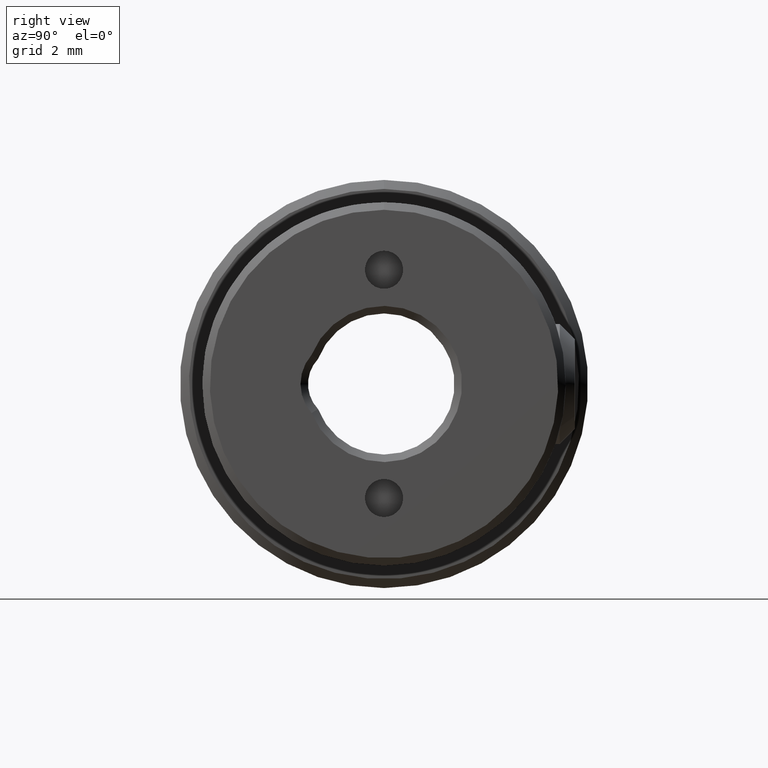
[diagram: clean part render]
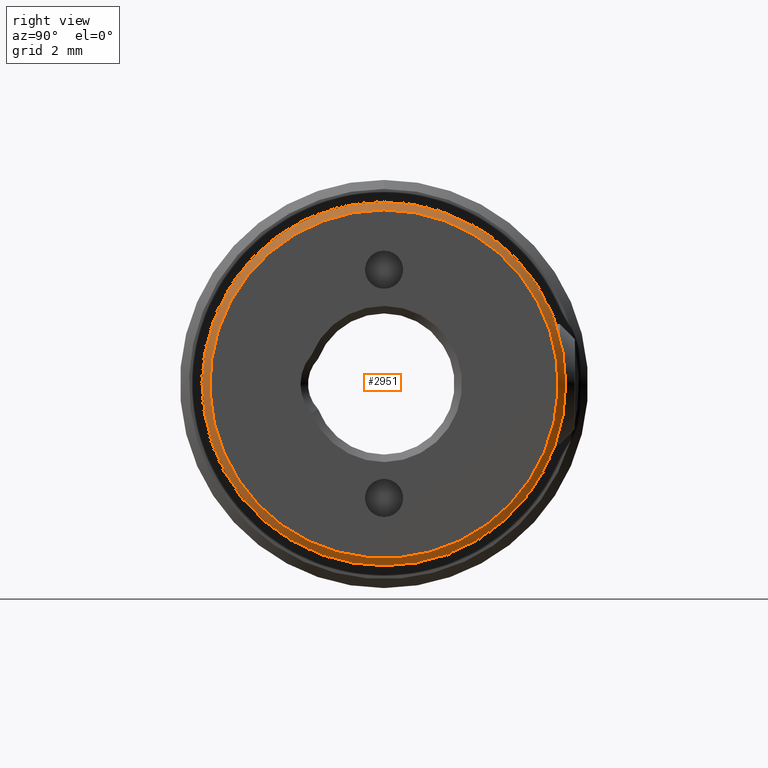
[diagram: same view with one face highlighted and labeled with its STEP entity id]
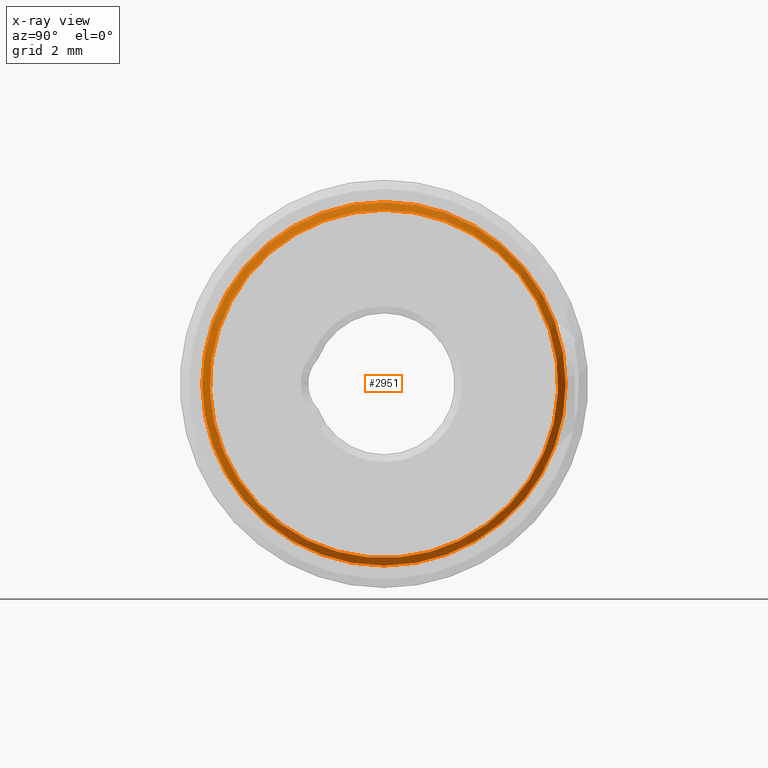
[diagram: x-ray of the same camera — body ghosted, the highlighted face saturated]
A machine part, right view. The second image highlights one B-rep face of the part: STEP entity #2951.
The next image is the same camera in x-ray: the body ghosted, the highlighted face saturated — about 0% of this face is hidden behind the body in this view.
In plain terms, the highlighted conical surface has half-angle 45 deg.
Its self-contained STEP definition (entity closure, byte-faithful):
#7 = DIRECTION ( 'NONE',  ( 0.000000000000000000, 0.000000000000000000, 1.000000000000000000 ) ) ;
#12 = EDGE_CURVE ( 'NONE', #21, #21, #1322, .T. ) ;
#14 = CIRCLE ( 'NONE', #1388, 6.049999999999999822 ) ;
#21 = VERTEX_POINT ( 'NONE', #1507 ) ;
#476 = DIRECTION ( 'NONE',  ( 0.000000000000000000, 0.000000000000000000, -1.000000000000000000 ) ) ;
#501 = CARTESIAN_POINT ( 'NONE',  ( 14.75000000000000000, 0.000000000000000000, -6.049999999999999822 ) ) ;
#632 = CARTESIAN_POINT ( 'NONE',  ( 15.00000000004320100, 0.000000000000000000, 0.000000000000000000 ) ) ;
#1048 = CONICAL_SURFACE ( 'NONE', #3029, 6.049999999959254637, 0.7853981633974482790 ) ;
#1282 = EDGE_LOOP ( 'NONE', ( #3415 ) ) ;
#1322 = CIRCLE ( 'NONE', #2734, 5.800000000022009772 ) ;
#1388 = AXIS2_PLACEMENT_3D ( 'NONE', #3231, #1799, #476 ) ;
#1468 = VERTEX_POINT ( 'NONE', #501 ) ;
#1507 = CARTESIAN_POINT ( 'NONE',  ( 15.00000000004320100, 0.000000000000000000, 5.800000000022009772 ) ) ;
#1621 = DIRECTION ( 'NONE',  ( -1.000000000000000000, 0.000000000000000000, 0.000000000000000000 ) ) ;
#1669 = DIRECTION ( 'NONE',  ( -1.000000000000000000, 0.000000000000000000, 0.000000000000000000 ) ) ;
#1799 = DIRECTION ( 'NONE',  ( -1.000000000000000000, 0.000000000000000000, 0.000000000000000000 ) ) ;
#2128 = FACE_OUTER_BOUND ( 'NONE', #1282, .T. ) ;
#2266 = EDGE_CURVE ( 'NONE', #1468, #1468, #14, .T. ) ;
#2431 = FACE_BOUND ( 'NONE', #2655, .T. ) ;
#2655 = EDGE_LOOP ( 'NONE', ( #3326 ) ) ;
#2734 = AXIS2_PLACEMENT_3D ( 'NONE', #632, #1669, #3298 ) ;
#2951 = ADVANCED_FACE ( 'NONE', ( #2128, #2431 ), #1048, .T. ) ;
#3029 = AXIS2_PLACEMENT_3D ( 'NONE', #3248, #1621, #7 ) ;
#3231 = CARTESIAN_POINT ( 'NONE',  ( 14.75000000000000000, 0.000000000000000000, 0.000000000000000000 ) ) ;
#3248 = CARTESIAN_POINT ( 'NONE',  ( 14.75000000010595613, 0.000000000000000000, 0.000000000000000000 ) ) ;
#3298 = DIRECTION ( 'NONE',  ( 0.000000000000000000, 0.000000000000000000, 1.000000000000000000 ) ) ;
#3326 = ORIENTED_EDGE ( 'NONE', *, *, #12, .T. ) ;
#3415 = ORIENTED_EDGE ( 'NONE', *, *, #2266, .F. ) ;